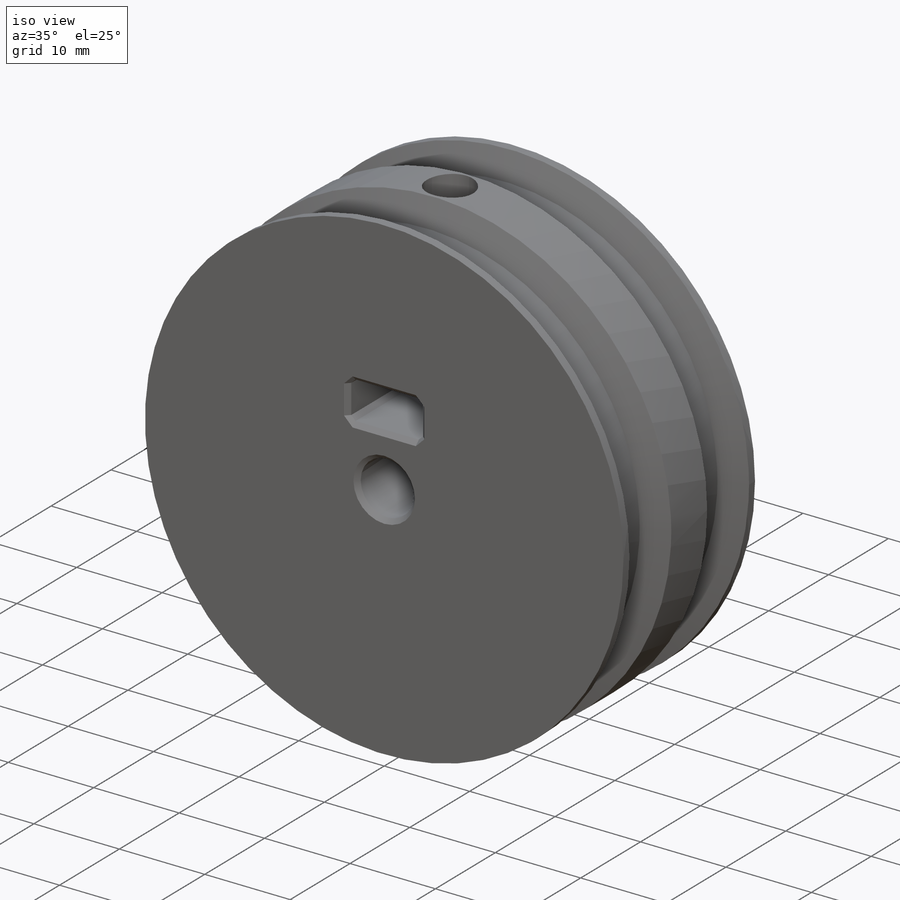
[diagram: iso view]
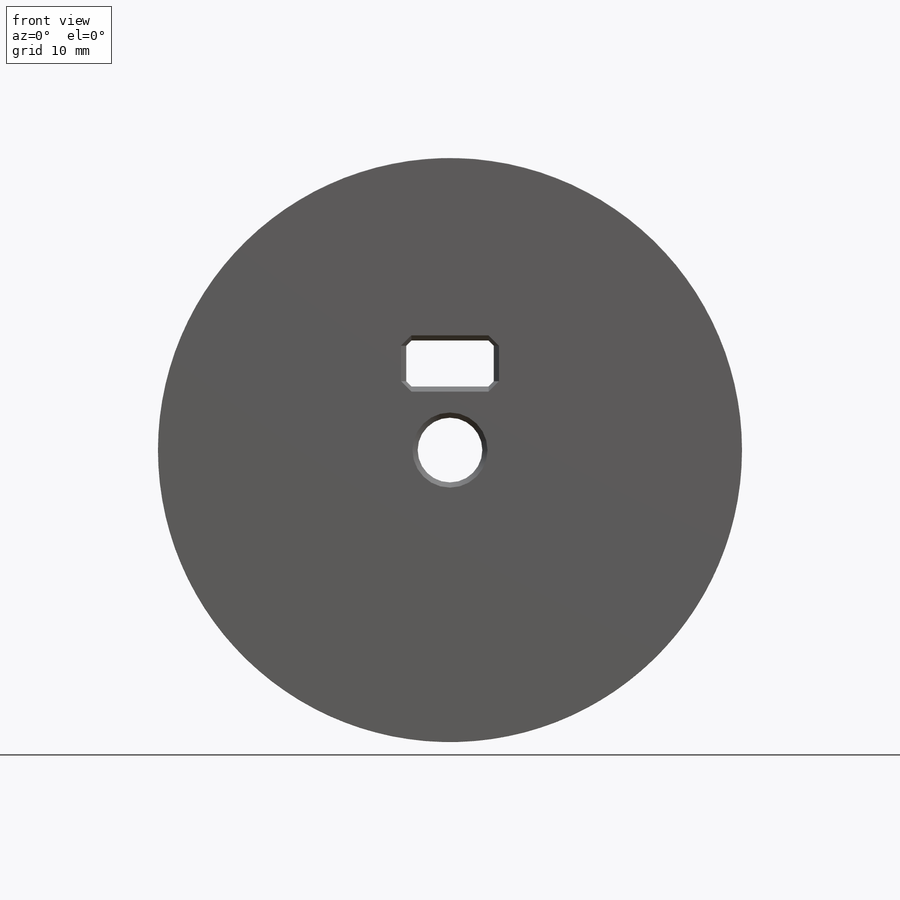
[diagram: front view]
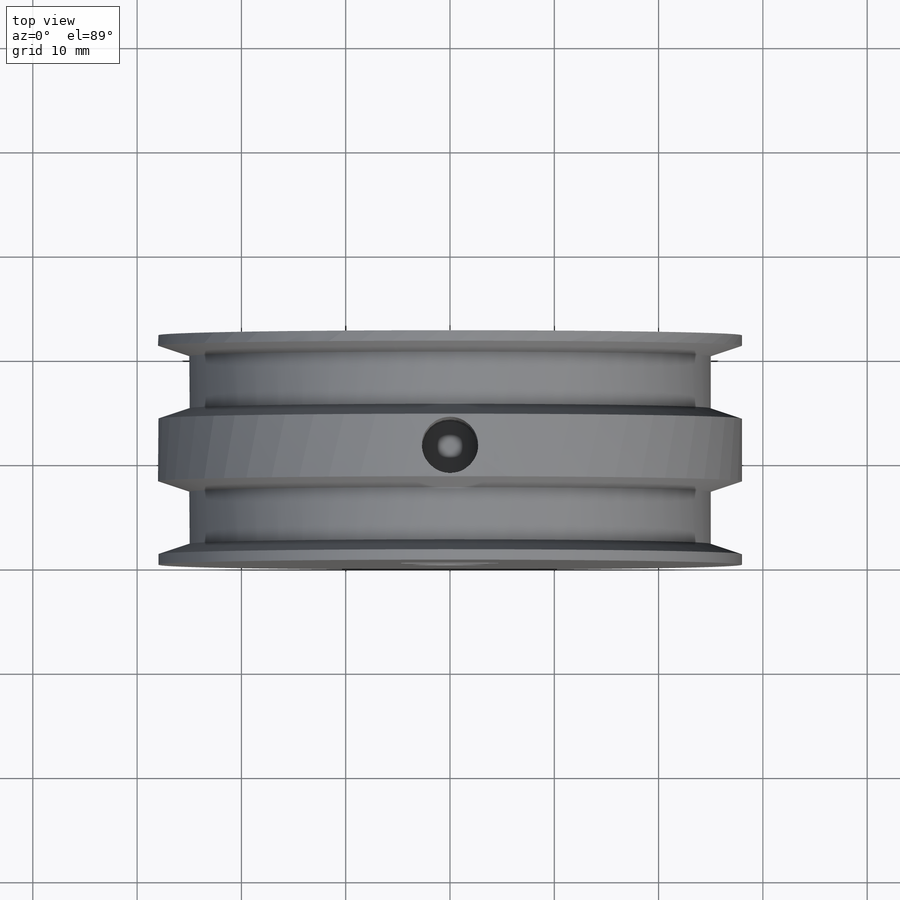
[diagram: top view]
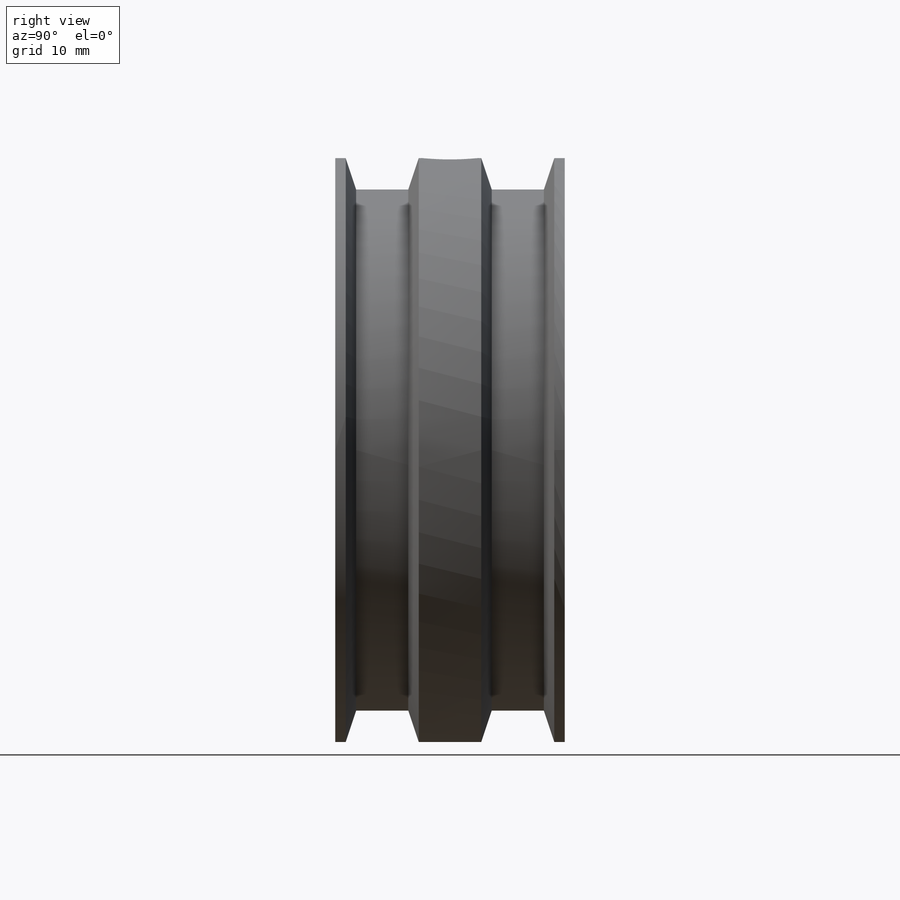
[diagram: right view]
SOLIDWORKS PART (.sldprt)
format: sldprt  version: not decoded by parser v0  size: 312,832 bytes
history: native  units: mm
features: sketch x6, cut_extrude x5, chamfer x5, material x1, extrude x1 (+13 scaffold rows collapsed)
feature tree (31):
  scaffold x13  (default folders/planes/origin — collapsed)
  material  "Material <not specified>"
  sketch  "Sketch2"  dims[D1=8.4mm]
  extrude  "Boss-Extrude1"  Depth=22mm
  sketch  "Sketch3"  dims[D1=~26.687237mm]
  cut_extrude  "Cut-Extrude1"  Depth=7mm
  sketch  "Sketch4"  dims[D1=~17.775554mm]
  cut_extrude  "Cut-Extrude2"  Depth=7mm
  sketch  "Sketch5"  dims[D1=11.0mm]
  cut_extrude  "Cut-Extrude3"  [1 undecoded]
  sketch  "Sketch6"  dims[D1=1.5mm]
  cut_extrude  "Cut-Extrude4"  [1 undecoded]
  sketch  "Sketch7"
  cut_extrude  "Cut-Extrude5"  [1 undecoded]
  chamfer  "Chamfer1"  Distance=3mm
  chamfer  "Chamfer2"  Distance=1mm
  chamfer  "Chamfer3"  Distance=1mm
  chamfer  "Chamfer4"  Distance=3mm
  chamfer  "Chamfer5"  Distance=0.5mm Angle=45deg
decode coverage: 13 of 17 modeling features carry decoded parameters
note: ~ marks probable driven/reference dimensions
note: 3 parameter values undecoded
summary: no parameter record found for 3 features
note: suppression state not decoded; provenance and decode notes live in map.json
